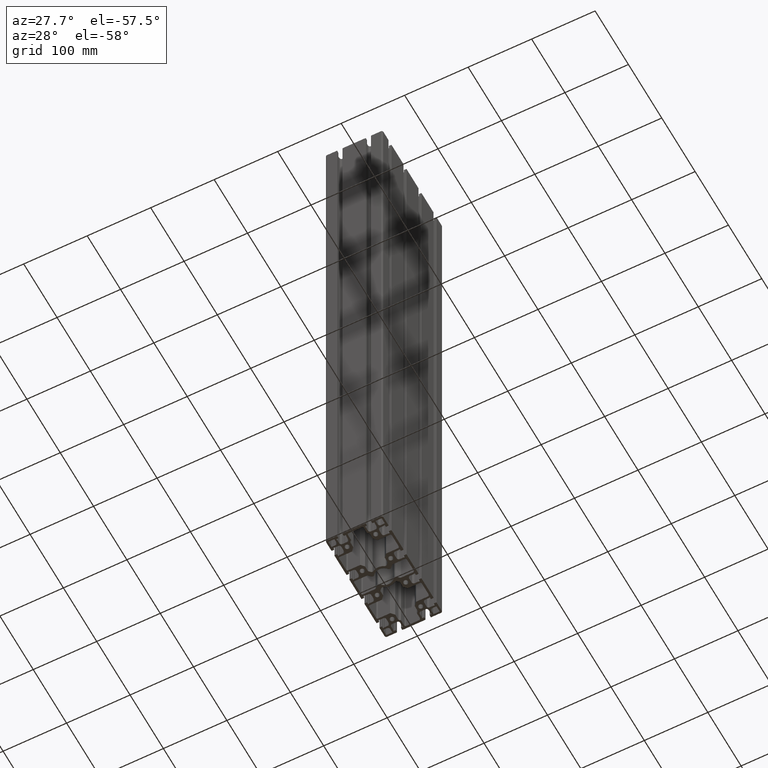
[diagram: clean part render]
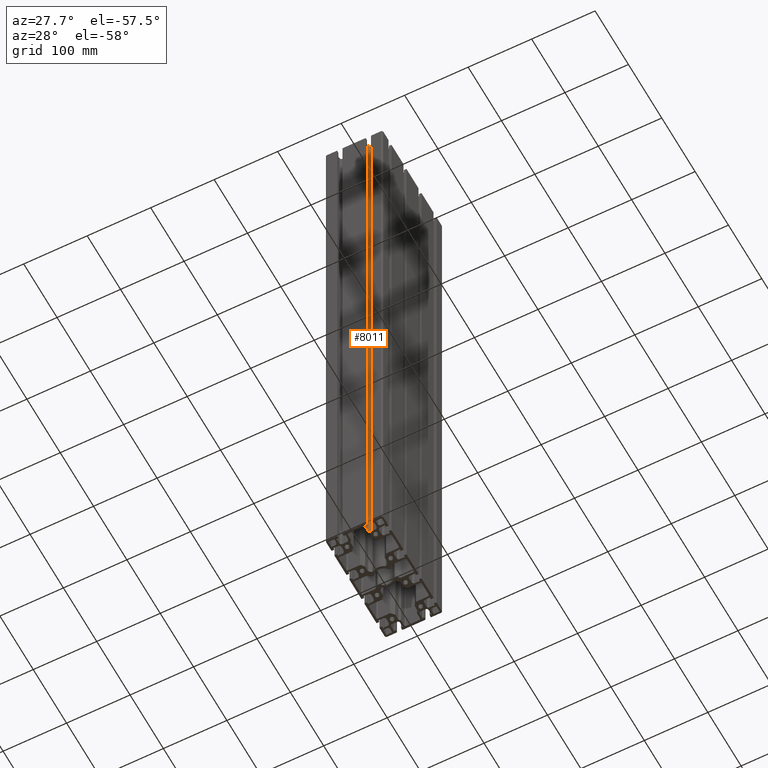
[diagram: same view with one face highlighted and labeled with its STEP entity id]
A machine part, auxiliary view. The second image highlights one B-rep face of the part: STEP entity #8011.
In plain terms, the highlighted cylindrical surface (edge-blend (fillet) strip) has radius 3.2 mm, axis along (0, 0, 1).
Its self-contained STEP definition (entity closure, byte-faithful):
#417=FACE_OUTER_BOUND('',#827,.T.);
#827=EDGE_LOOP('',(#5833,#5834,#5835,#5836));
#1389=LINE('',#12441,#2229);
#1390=LINE('',#12447,#2230);
#2229=VECTOR('',#10042,10.);
#2230=VECTOR('',#10049,10.);
#2979=CIRCLE('',#8631,3.20000000000014);
#2980=CIRCLE('',#8632,3.20000000000014);
#3485=VERTEX_POINT('',#12437);
#3486=VERTEX_POINT('',#12439);
#3487=VERTEX_POINT('',#12443);
#3488=VERTEX_POINT('',#12445);
#4455=EDGE_CURVE('',#3485,#3486,#1389,.T.);
#4456=EDGE_CURVE('',#3485,#3487,#2979,.T.);
#4457=EDGE_CURVE('',#3488,#3486,#2980,.T.);
#4458=EDGE_CURVE('',#3487,#3488,#1390,.T.);
#5833=ORIENTED_EDGE('',*,*,#4456,.F.);
#5834=ORIENTED_EDGE('',*,*,#4455,.T.);
#5835=ORIENTED_EDGE('',*,*,#4457,.F.);
#5836=ORIENTED_EDGE('',*,*,#4458,.F.);
#7758=CYLINDRICAL_SURFACE('',#8630,3.20000000000014);
#8011=ADVANCED_FACE('',(#417),#7758,.F.);
#8630=AXIS2_PLACEMENT_3D('',#12442,#10043,#10044);
#8631=AXIS2_PLACEMENT_3D('',#12444,#10045,#10046);
#8632=AXIS2_PLACEMENT_3D('',#12446,#10047,#10048);
#10042=DIRECTION('',(0.,0.,1.));
#10043=DIRECTION('center_axis',(0.,0.,1.));
#10044=DIRECTION('ref_axis',(-3.27515792264407E-13,1.,0.));
#10045=DIRECTION('center_axis',(0.,0.,1.));
#10046=DIRECTION('ref_axis',(-3.27515792264407E-13,1.,0.));
#10047=DIRECTION('center_axis',(0.,0.,-1.));
#10048=DIRECTION('ref_axis',(-3.27515792264407E-13,1.,0.));
#10049=DIRECTION('',(0.,0.,1.));
#12437=CARTESIAN_POINT('',(18.7000000000222,-74.6999999999945,0.));
#12439=CARTESIAN_POINT('',(18.7000000000222,-74.6999999999945,1000.));
#12441=CARTESIAN_POINT('',(18.7000000000222,-74.6999999999945,0.));
#12442=CARTESIAN_POINT('Origin',(18.7000000000233,-77.8999999999946,0.));
#12443=CARTESIAN_POINT('',(15.5000000000231,-77.8999999999945,0.));
#12444=CARTESIAN_POINT('Origin',(18.7000000000233,-77.8999999999946,0.));
#12445=CARTESIAN_POINT('',(15.5000000000231,-77.8999999999945,1000.));
#12446=CARTESIAN_POINT('Origin',(18.7000000000233,-77.8999999999946,1000.));
#12447=CARTESIAN_POINT('',(15.5000000000231,-77.8999999999945,0.));